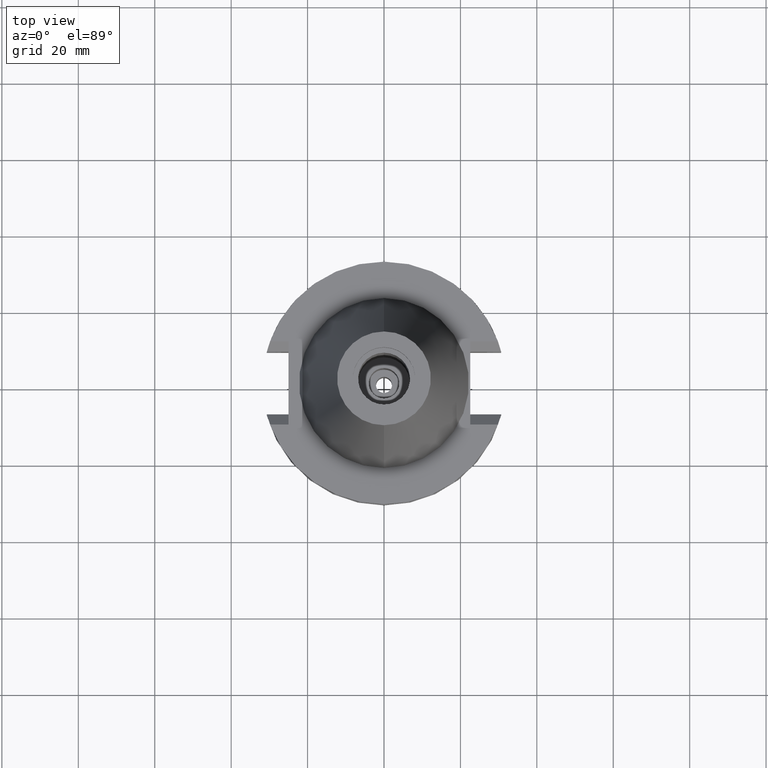
[diagram: clean part render]
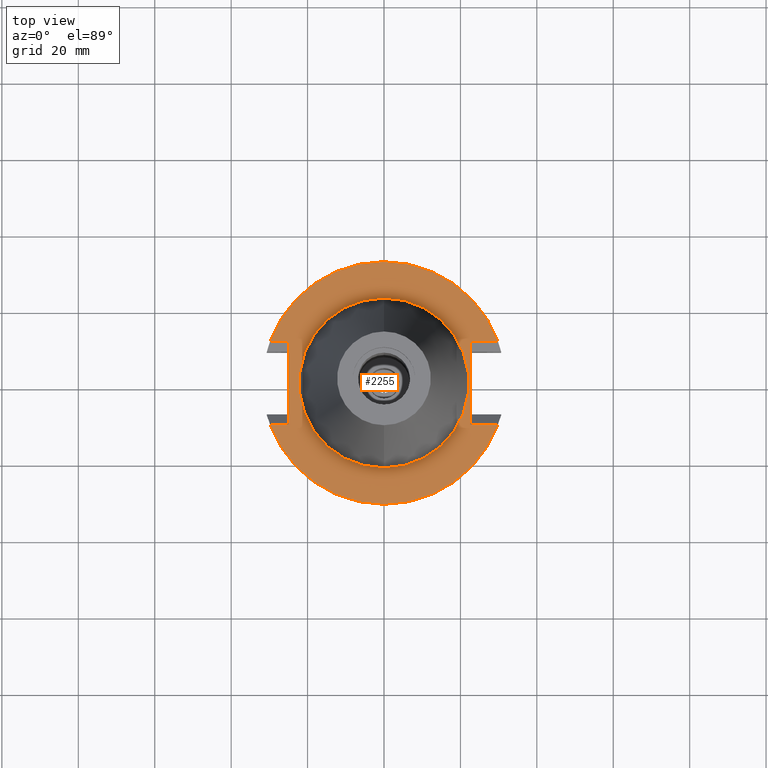
[diagram: same view with one face highlighted and labeled with its STEP entity id]
A machine part, top view. The second image highlights one B-rep face of the part: STEP entity #2255.
In plain terms, the highlighted planar face has unit normal (0, 0, -1).
Its self-contained STEP definition (entity closure, byte-faithful):
#700=DIRECTION('',(0.E0,-1.E0,0.E0));
#701=VECTOR('',#700,2.178E1);
#702=CARTESIAN_POINT('',(-2.498E1,1.089E1,-1.E0));
#703=LINE('',#702,#701);
#806=DIRECTION('',(1.E0,-5.877118954908E-14,0.E0));
#807=VECTOR('',#806,7.253990343348E0);
#808=CARTESIAN_POINT('',(2.257E1,1.089E1,-1.E0));
#809=LINE('',#808,#807);
#823=CARTESIAN_POINT('',(2.982399034335E1,1.089E1,-1.000000000001E0));
#843=DIRECTION('',(0.E0,-1.E0,0.E0));
#844=VECTOR('',#843,2.178E1);
#845=CARTESIAN_POINT('',(2.257E1,1.089E1,-1.E0));
#846=LINE('',#845,#844);
#850=DIRECTION('',(1.E0,6.024046928781E-14,0.E0));
#851=VECTOR('',#850,7.253990343348E0);
#852=CARTESIAN_POINT('',(2.257E1,-1.089E1,-1.E0));
#853=LINE('',#852,#851);
#857=CARTESIAN_POINT('',(0.E0,2.164471368983E-14,-1.E0));
#858=DIRECTION('',(0.E0,0.E0,-1.E0));
#859=DIRECTION('',(9.393382785306E-1,-3.429921259843E-1,0.E0));
#860=AXIS2_PLACEMENT_3D('',#857,#858,#859);
#865=CARTESIAN_POINT('',(0.E0,2.164471368983E-14,-1.E0));
#866=DIRECTION('',(0.E0,0.E0,-1.E0));
#867=DIRECTION('',(0.E0,-1.E0,0.E0));
#868=AXIS2_PLACEMENT_3D('',#865,#866,#867);
#873=DIRECTION('',(-1.E0,-8.911138986209E-14,0.E0));
#874=VECTOR('',#873,4.843990343348E0);
#875=CARTESIAN_POINT('',(-2.498E1,1.089E1,-1.E0));
#876=LINE('',#875,#874);
#880=CARTESIAN_POINT('',(0.E0,2.164471368983E-14,-1.E0));
#881=DIRECTION('',(0.E0,0.E0,-1.E0));
#882=DIRECTION('',(-9.393382785306E-1,3.429921259843E-1,0.E0));
#883=AXIS2_PLACEMENT_3D('',#880,#881,#882);
#888=CARTESIAN_POINT('',(0.E0,2.164471368983E-14,-1.E0));
#889=DIRECTION('',(0.E0,0.E0,-1.E0));
#890=DIRECTION('',(0.E0,1.E0,0.E0));
#891=AXIS2_PLACEMENT_3D('',#888,#889,#890);
#896=CARTESIAN_POINT('',(0.E0,2.164471368983E-14,-1.E0));
#897=DIRECTION('',(0.E0,0.E0,1.E0));
#898=DIRECTION('',(0.E0,-1.E0,0.E0));
#899=AXIS2_PLACEMENT_3D('',#896,#897,#898);
#904=CARTESIAN_POINT('',(0.E0,2.164471368983E-14,-1.E0));
#905=DIRECTION('',(0.E0,0.E0,1.E0));
#906=DIRECTION('',(0.E0,1.E0,0.E0));
#907=AXIS2_PLACEMENT_3D('',#904,#905,#906);
#912=CARTESIAN_POINT('',(2.982399034335E1,-1.089E1,-1.000000000001E0));
#937=CARTESIAN_POINT('',(-2.982399034335E1,-1.089E1,-1.000000000001E0));
#1086=DIRECTION('',(-1.E0,8.911138986209E-14,0.E0));
#1087=VECTOR('',#1086,4.843990343348E0);
#1088=CARTESIAN_POINT('',(-2.498E1,-1.089E1,-1.E0));
#1089=LINE('',#1088,#1087);
#1394=CARTESIAN_POINT('',(2.257E1,-1.089E1,-1.E0));
#1395=VERTEX_POINT('',#1394);
#1396=CARTESIAN_POINT('',(2.257E1,1.089E1,-1.E0));
#1397=VERTEX_POINT('',#1396);
#1437=CARTESIAN_POINT('',(-2.498E1,1.089E1,-1.E0));
#1438=VERTEX_POINT('',#1437);
#1439=CARTESIAN_POINT('',(-2.498E1,-1.089E1,-1.E0));
#1440=VERTEX_POINT('',#1439);
#1483=VERTEX_POINT('',#912);
#1484=VERTEX_POINT('',#937);
#1485=CARTESIAN_POINT('',(-1.432899828923E-14,-3.175E1,-1.E0));
#1486=VERTEX_POINT('',#1485);
#1489=VERTEX_POINT('',#823);
#1490=CARTESIAN_POINT('',(1.965806880743E-14,3.175E1,-1.E0));
#1491=VERTEX_POINT('',#1490);
#1492=CARTESIAN_POINT('',(-2.982399034335E1,1.089E1,-1.E0));
#1493=VERTEX_POINT('',#1492);
#1494=CARTESIAN_POINT('',(0.E0,-2.2225E1,-1.E0));
#1495=CARTESIAN_POINT('',(0.E0,2.2225E1,-1.E0));
#1496=VERTEX_POINT('',#1494);
#1497=VERTEX_POINT('',#1495);
#2227=CARTESIAN_POINT('',(0.E0,1.212400331156E-14,-1.E0));
#2228=DIRECTION('',(0.E0,0.E0,-1.E0));
#2229=DIRECTION('',(0.E0,-1.E0,0.E0));
#2230=AXIS2_PLACEMENT_3D('',#2227,#2228,#2229);
#2231=PLANE('',#2230);
#2232=ORIENTED_EDGE('',*,*,#2022,.T.);
#2234=ORIENTED_EDGE('',*,*,#2233,.T.);
#2236=ORIENTED_EDGE('',*,*,#2235,.T.);
#2238=ORIENTED_EDGE('',*,*,#2237,.T.);
#2240=ORIENTED_EDGE('',*,*,#2239,.F.);
#2241=ORIENTED_EDGE('',*,*,#2110,.F.);
#2243=ORIENTED_EDGE('',*,*,#2242,.T.);
#2244=ORIENTED_EDGE('',*,*,#2215,.T.);
#2245=ORIENTED_EDGE('',*,*,#2213,.T.);
#2246=ORIENTED_EDGE('',*,*,#2201,.F.);
#2247=EDGE_LOOP('',(#2232,#2234,#2236,#2238,#2240,#2241,#2243,#2244,#2245,
#2246));
#2248=FACE_OUTER_BOUND('',#2247,.F.);
#2250=ORIENTED_EDGE('',*,*,#2249,.T.);
#2252=ORIENTED_EDGE('',*,*,#2251,.T.);
#2253=EDGE_LOOP('',(#2250,#2252));
#2254=FACE_BOUND('',#2253,.F.);
#861=CIRCLE('',#860,3.175E1);
#869=CIRCLE('',#868,3.175E1);
#884=CIRCLE('',#883,3.175E1);
#892=CIRCLE('',#891,3.175E1);
#900=CIRCLE('',#899,2.2225E1);
#908=CIRCLE('',#907,2.2225E1);
#2022=EDGE_CURVE('',#1397,#1395,#846,.T.);
#2110=EDGE_CURVE('',#1438,#1440,#703,.T.);
#2201=EDGE_CURVE('',#1397,#1489,#809,.T.);
#2213=EDGE_CURVE('',#1491,#1489,#892,.T.);
#2215=EDGE_CURVE('',#1493,#1491,#884,.T.);
#2233=EDGE_CURVE('',#1395,#1483,#853,.T.);
#2235=EDGE_CURVE('',#1483,#1486,#861,.T.);
#2237=EDGE_CURVE('',#1486,#1484,#869,.T.);
#2239=EDGE_CURVE('',#1440,#1484,#1089,.T.);
#2242=EDGE_CURVE('',#1438,#1493,#876,.T.);
#2249=EDGE_CURVE('',#1496,#1497,#900,.T.);
#2251=EDGE_CURVE('',#1497,#1496,#908,.T.);
#2255=ADVANCED_FACE('',(#2248,#2254),#2231,.F.);